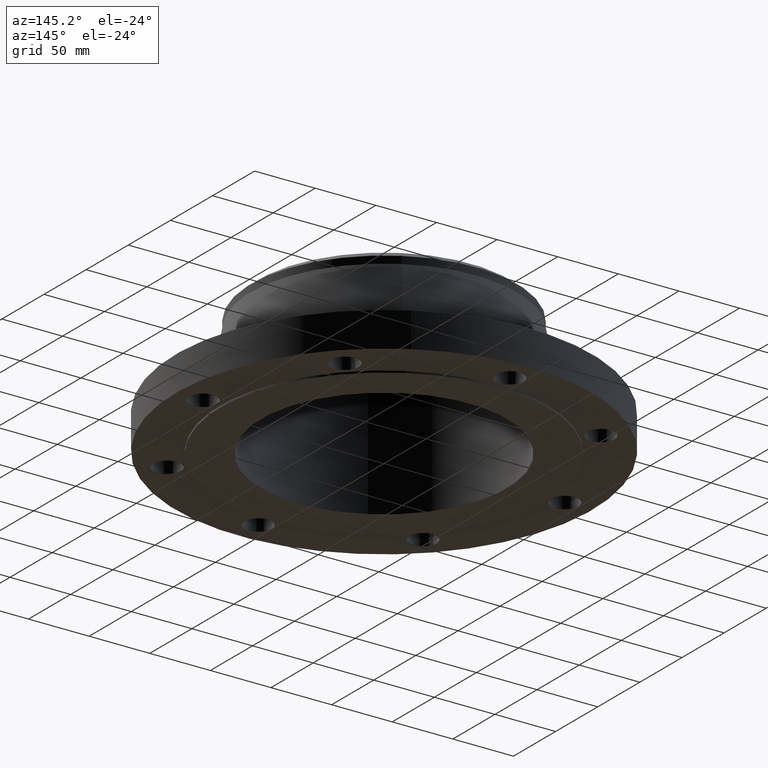
[diagram: clean part render]
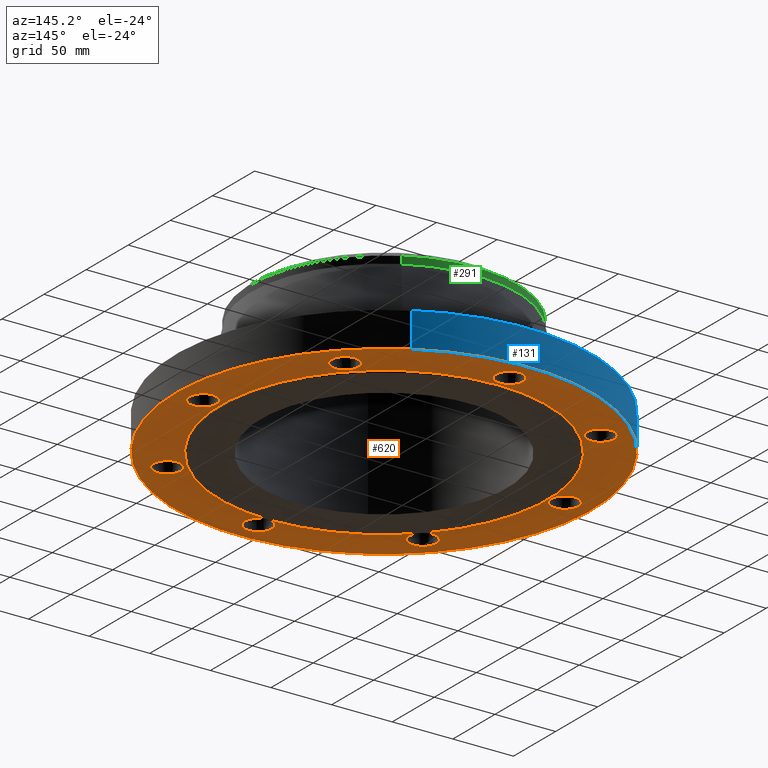
[diagram: same view with three faces highlighted in distinct colors, each labeled with its STEP entity id]
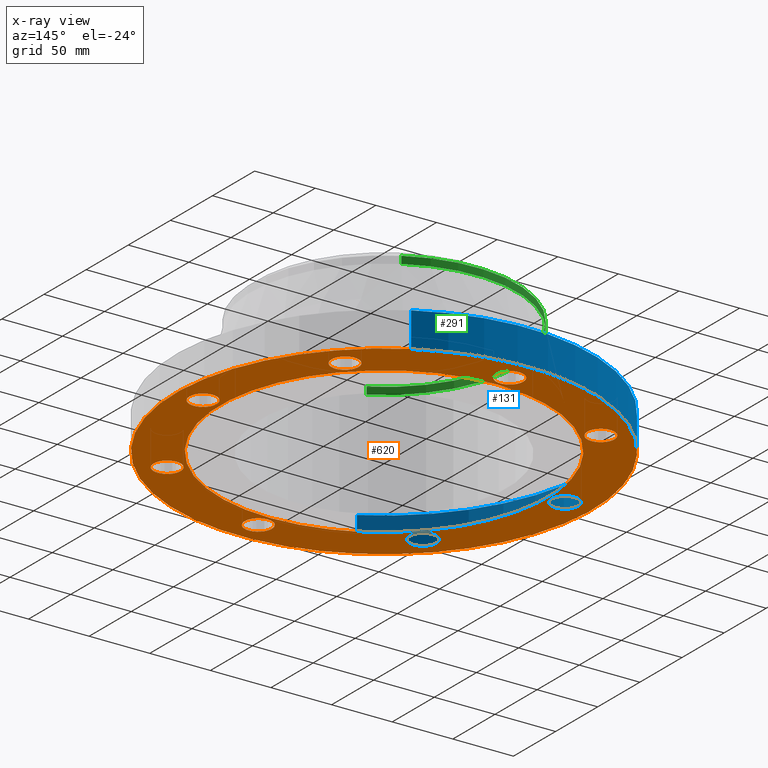
[diagram: x-ray of the same camera — body ghosted, the three highlighted faces saturated]
A machine part, auxiliary view with three faces highlighted in distinct colors.
The next image is the same camera in x-ray (body ghosted, the three faces saturated) — at least one of them is partly hidden behind the body in this view.
Their STEP definitions:

[orange] entity #620 — the highlighted planar face has unit normal (0, 0, -1).
#51=AXIS2_PLACEMENT_3D('Circle Axis2P3D',#49,#50,$) ;
#77=AXIS2_PLACEMENT_3D('Circle Axis2P3D',#75,#76,$) ;
#99=AXIS2_PLACEMENT_3D('Circle Axis2P3D',#97,#98,$) ;
#134=AXIS2_PLACEMENT_3D('Circle Axis2P3D',#132,#133,$) ;
#448=AXIS2_PLACEMENT_3D('Circle Axis2P3D',#446,#447,$) ;
#467=AXIS2_PLACEMENT_3D('Circle Axis2P3D',#465,#466,$) ;
#480=AXIS2_PLACEMENT_3D('Plane Axis2P3D',#477,#478,#479) ;
#496=AXIS2_PLACEMENT_3D('Circle Axis2P3D',#494,#495,$) ;
#505=AXIS2_PLACEMENT_3D('Circle Axis2P3D',#503,#504,$) ;
#514=AXIS2_PLACEMENT_3D('Circle Axis2P3D',#512,#513,$) ;
#523=AXIS2_PLACEMENT_3D('Circle Axis2P3D',#521,#522,$) ;
#532=AXIS2_PLACEMENT_3D('Circle Axis2P3D',#530,#531,$) ;
#541=AXIS2_PLACEMENT_3D('Circle Axis2P3D',#539,#540,$) ;
#550=AXIS2_PLACEMENT_3D('Circle Axis2P3D',#548,#549,$) ;
#559=AXIS2_PLACEMENT_3D('Circle Axis2P3D',#557,#558,$) ;
#568=AXIS2_PLACEMENT_3D('Circle Axis2P3D',#566,#567,$) ;
#577=AXIS2_PLACEMENT_3D('Circle Axis2P3D',#575,#576,$) ;
#586=AXIS2_PLACEMENT_3D('Circle Axis2P3D',#584,#585,$) ;
#595=AXIS2_PLACEMENT_3D('Circle Axis2P3D',#593,#594,$) ;
#604=AXIS2_PLACEMENT_3D('Circle Axis2P3D',#602,#603,$) ;
#613=AXIS2_PLACEMENT_3D('Circle Axis2P3D',#611,#612,$) ;
#44=CARTESIAN_POINT('Vertex',(5.48886367279,0.210947236987,0.)) ;
#49=CARTESIAN_POINT('Axis2P3D Location',(5.87500000002,0.,0.)) ;
#53=CARTESIAN_POINT('Vertex',(6.26113632726,-0.210947236987,0.)) ;
#75=CARTESIAN_POINT('Axis2P3D Location',(5.87500000002,0.,0.)) ;
#97=CARTESIAN_POINT('Axis2P3D Location',(0.,0.,2.79741234551E-016)) ;
#101=CARTESIAN_POINT('Vertex',(-3.23612238559,-5.92368229278,2.79741234551E-016)) ;
#103=CARTESIAN_POINT('Vertex',(3.23612238559,5.92368229278,2.79741234551E-016)) ;
#132=CARTESIAN_POINT('Axis2P3D Location',(0.,0.,2.79741234551E-016)) ;
#443=CARTESIAN_POINT('Vertex',(-2.54814673769,-4.66435131647,5.59482469102E-016)) ;
#446=CARTESIAN_POINT('Axis2P3D Location',(0.,0.,5.59482469102E-016)) ;
#450=CARTESIAN_POINT('Vertex',(2.54814673769,4.66435131647,5.59482469102E-016)) ;
#465=CARTESIAN_POINT('Axis2P3D Location',(0.,0.,5.59482469102E-016)) ;
#477=CARTESIAN_POINT('Axis2P3D Location',(0.,5.31500000002,0.)) ;
#494=CARTESIAN_POINT('Axis2P3D Location',(4.15425233949,-4.15425233949,0.)) ;
#498=CARTESIAN_POINT('Vertex',(4.03037494578,-3.73205050229,0.)) ;
#500=CARTESIAN_POINT('Vertex',(4.27812973319,-4.57645417668,0.)) ;
#503=CARTESIAN_POINT('Axis2P3D Location',(4.15425233949,-4.15425233949,0.)) ;
#512=CARTESIAN_POINT('Axis2P3D Location',(-1.60851209867E-015,-5.87500000002,0.)) ;
#516=CARTESIAN_POINT('Vertex',(0.210947236987,-5.48886367279,0.)) ;
#518=CARTESIAN_POINT('Vertex',(-0.210947236987,-6.26113632726,0.)) ;
#521=CARTESIAN_POINT('Axis2P3D Location',(2.44773580232E-016,-5.87500000002,0.)) ;
#530=CARTESIAN_POINT('Axis2P3D Location',(-4.15425233949,-4.15425233949,0.)) ;
#534=CARTESIAN_POINT('Vertex',(-3.73205050229,-4.03037494578,0.)) ;
#536=CARTESIAN_POINT('Vertex',(-4.57645417668,-4.27812973319,0.)) ;
#539=CARTESIAN_POINT('Axis2P3D Location',(-4.15425233949,-4.15425233949,0.)) ;
#548=CARTESIAN_POINT('Axis2P3D Location',(-5.87500000002,-1.1189649382E-015,0.)) ;
#552=CARTESIAN_POINT('Vertex',(-5.48886367279,-0.210947236987,0.)) ;
#554=CARTESIAN_POINT('Vertex',(-6.26113632726,0.210947236987,0.)) ;
#557=CARTESIAN_POINT('Axis2P3D Location',(-5.87500000002,-1.1189649382E-015,0.)) ;
#566=CARTESIAN_POINT('Axis2P3D Location',(-4.15425233949,4.15425233949,0.)) ;
#570=CARTESIAN_POINT('Vertex',(-4.03037494578,3.73205050229,0.)) ;
#572=CARTESIAN_POINT('Vertex',(-4.27812973319,4.57645417668,0.)) ;
#575=CARTESIAN_POINT('Axis2P3D Location',(-4.15425233949,4.15425233949,0.)) ;
#584=CARTESIAN_POINT('Axis2P3D Location',(-1.53857679003E-015,5.87500000002,0.)) ;
#588=CARTESIAN_POINT('Vertex',(-0.210947236987,5.48886367279,0.)) ;
#590=CARTESIAN_POINT('Vertex',(0.210947236987,6.26113632726,0.)) ;
#593=CARTESIAN_POINT('Axis2P3D Location',(-6.2941777774E-016,5.87500000002,0.)) ;
#602=CARTESIAN_POINT('Axis2P3D Location',(4.15425233949,4.15425233949,0.)) ;
#606=CARTESIAN_POINT('Vertex',(3.73205050229,4.03037494578,0.)) ;
#608=CARTESIAN_POINT('Vertex',(4.57645417668,4.27812973319,0.)) ;
#611=CARTESIAN_POINT('Axis2P3D Location',(4.15425233949,4.15425233949,0.)) ;
#50=DIRECTION('Axis2P3D Direction',(0.,-0.,-0.0393700787402)) ;
#76=DIRECTION('Axis2P3D Direction',(0.,-0.,-0.0393700787402)) ;
#98=DIRECTION('Axis2P3D Direction',(0.,0.,-0.0393700787402)) ;
#133=DIRECTION('Axis2P3D Direction',(0.,0.,-0.0393700787402)) ;
#447=DIRECTION('Axis2P3D Direction',(0.,0.,-0.0393700787402)) ;
#466=DIRECTION('Axis2P3D Direction',(0.,0.,-0.0393700787402)) ;
#478=DIRECTION('Axis2P3D Direction',(0.,0.,-0.0393700787402)) ;
#479=DIRECTION('Axis2P3D XDirection',(0.0393700787402,0.,0.)) ;
#495=DIRECTION('Axis2P3D Direction',(0.,0.,-0.0393700787402)) ;
#504=DIRECTION('Axis2P3D Direction',(0.,0.,-0.0393700787402)) ;
#513=DIRECTION('Axis2P3D Direction',(0.,0.,-0.0393700787402)) ;
#522=DIRECTION('Axis2P3D Direction',(0.,0.,-0.0393700787402)) ;
#531=DIRECTION('Axis2P3D Direction',(0.,0.,-0.0393700787402)) ;
#540=DIRECTION('Axis2P3D Direction',(0.,0.,-0.0393700787402)) ;
#549=DIRECTION('Axis2P3D Direction',(0.,0.,-0.0393700787402)) ;
#558=DIRECTION('Axis2P3D Direction',(0.,0.,-0.0393700787402)) ;
#567=DIRECTION('Axis2P3D Direction',(0.,0.,-0.0393700787402)) ;
#576=DIRECTION('Axis2P3D Direction',(0.,0.,-0.0393700787402)) ;
#585=DIRECTION('Axis2P3D Direction',(0.,0.,-0.0393700787402)) ;
#594=DIRECTION('Axis2P3D Direction',(0.,0.,-0.0393700787402)) ;
#603=DIRECTION('Axis2P3D Direction',(0.,0.,-0.0393700787402)) ;
#612=DIRECTION('Axis2P3D Direction',(0.,0.,-0.0393700787402)) ;
#483=ORIENTED_EDGE('',*,*,#105,.T.) ;
#484=ORIENTED_EDGE('',*,*,#136,.T.) ;
#487=ORIENTED_EDGE('',*,*,#79,.F.) ;
#488=ORIENTED_EDGE('',*,*,#55,.F.) ;
#491=ORIENTED_EDGE('',*,*,#469,.F.) ;
#492=ORIENTED_EDGE('',*,*,#452,.F.) ;
#509=ORIENTED_EDGE('',*,*,#502,.F.) ;
#510=ORIENTED_EDGE('',*,*,#507,.F.) ;
#527=ORIENTED_EDGE('',*,*,#520,.F.) ;
#528=ORIENTED_EDGE('',*,*,#525,.F.) ;
#545=ORIENTED_EDGE('',*,*,#538,.F.) ;
#546=ORIENTED_EDGE('',*,*,#543,.F.) ;
#563=ORIENTED_EDGE('',*,*,#556,.F.) ;
#564=ORIENTED_EDGE('',*,*,#561,.F.) ;
#581=ORIENTED_EDGE('',*,*,#574,.F.) ;
#582=ORIENTED_EDGE('',*,*,#579,.F.) ;
#599=ORIENTED_EDGE('',*,*,#592,.F.) ;
#600=ORIENTED_EDGE('',*,*,#597,.F.) ;
#617=ORIENTED_EDGE('',*,*,#610,.F.) ;
#618=ORIENTED_EDGE('',*,*,#615,.F.) ;
#489=FACE_BOUND('',#486,.T.) ;
#493=FACE_BOUND('',#490,.T.) ;
#511=FACE_BOUND('',#508,.T.) ;
#529=FACE_BOUND('',#526,.T.) ;
#547=FACE_BOUND('',#544,.T.) ;
#565=FACE_BOUND('',#562,.T.) ;
#583=FACE_BOUND('',#580,.T.) ;
#601=FACE_BOUND('',#598,.T.) ;
#619=FACE_BOUND('',#616,.T.) ;
#620=ADVANCED_FACE('PartBody',(#485,#489,#493,#511,#529,#547,#565,#583,#601,#619),#481,.T.) ;
#52=CIRCLE('generated circle',#51,0.440000000002) ;
#78=CIRCLE('generated circle',#77,0.440000000002) ;
#100=CIRCLE('generated circle',#99,6.75000000003) ;
#135=CIRCLE('generated circle',#134,6.75000000003) ;
#449=CIRCLE('generated circle',#448,5.31500000002) ;
#468=CIRCLE('generated circle',#467,5.31500000002) ;
#497=CIRCLE('generated circle',#496,0.440000000002) ;
#506=CIRCLE('generated circle',#505,0.440000000002) ;
#515=CIRCLE('generated circle',#514,0.440000000002) ;
#524=CIRCLE('generated circle',#523,0.440000000002) ;
#533=CIRCLE('generated circle',#532,0.440000000002) ;
#542=CIRCLE('generated circle',#541,0.440000000002) ;
#551=CIRCLE('generated circle',#550,0.440000000002) ;
#560=CIRCLE('generated circle',#559,0.440000000002) ;
#569=CIRCLE('generated circle',#568,0.440000000002) ;
#578=CIRCLE('generated circle',#577,0.440000000002) ;
#587=CIRCLE('generated circle',#586,0.440000000002) ;
#596=CIRCLE('generated circle',#595,0.440000000002) ;
#605=CIRCLE('generated circle',#604,0.440000000002) ;
#614=CIRCLE('generated circle',#613,0.440000000002) ;
#55=EDGE_CURVE('',#45,#54,#52,.T.) ;
#79=EDGE_CURVE('',#54,#45,#78,.T.) ;
#105=EDGE_CURVE('',#102,#104,#100,.T.) ;
#136=EDGE_CURVE('',#104,#102,#135,.T.) ;
#452=EDGE_CURVE('',#444,#451,#449,.T.) ;
#469=EDGE_CURVE('',#451,#444,#468,.T.) ;
#502=EDGE_CURVE('',#499,#501,#497,.T.) ;
#507=EDGE_CURVE('',#501,#499,#506,.T.) ;
#520=EDGE_CURVE('',#517,#519,#515,.T.) ;
#525=EDGE_CURVE('',#519,#517,#524,.T.) ;
#538=EDGE_CURVE('',#535,#537,#533,.T.) ;
#543=EDGE_CURVE('',#537,#535,#542,.T.) ;
#556=EDGE_CURVE('',#553,#555,#551,.T.) ;
#561=EDGE_CURVE('',#555,#553,#560,.T.) ;
#574=EDGE_CURVE('',#571,#573,#569,.T.) ;
#579=EDGE_CURVE('',#573,#571,#578,.T.) ;
#592=EDGE_CURVE('',#589,#591,#587,.T.) ;
#597=EDGE_CURVE('',#591,#589,#596,.T.) ;
#610=EDGE_CURVE('',#607,#609,#605,.T.) ;
#615=EDGE_CURVE('',#609,#607,#614,.T.) ;
#482=EDGE_LOOP('',(#483,#484)) ;
#486=EDGE_LOOP('',(#487,#488)) ;
#490=EDGE_LOOP('',(#491,#492)) ;
#508=EDGE_LOOP('',(#509,#510)) ;
#526=EDGE_LOOP('',(#527,#528)) ;
#544=EDGE_LOOP('',(#545,#546)) ;
#562=EDGE_LOOP('',(#563,#564)) ;
#580=EDGE_LOOP('',(#581,#582)) ;
#598=EDGE_LOOP('',(#599,#600)) ;
#616=EDGE_LOOP('',(#617,#618)) ;
#485=FACE_OUTER_BOUND('',#482,.T.) ;
#481=PLANE('',#480) ;
#45=VERTEX_POINT('',#44) ;
#54=VERTEX_POINT('',#53) ;
#102=VERTEX_POINT('',#101) ;
#104=VERTEX_POINT('',#103) ;
#444=VERTEX_POINT('',#443) ;
#451=VERTEX_POINT('',#450) ;
#499=VERTEX_POINT('',#498) ;
#501=VERTEX_POINT('',#500) ;
#517=VERTEX_POINT('',#516) ;
#519=VERTEX_POINT('',#518) ;
#535=VERTEX_POINT('',#534) ;
#537=VERTEX_POINT('',#536) ;
#553=VERTEX_POINT('',#552) ;
#555=VERTEX_POINT('',#554) ;
#571=VERTEX_POINT('',#570) ;
#573=VERTEX_POINT('',#572) ;
#589=VERTEX_POINT('',#588) ;
#591=VERTEX_POINT('',#590) ;
#607=VERTEX_POINT('',#606) ;
#609=VERTEX_POINT('',#608) ;

[blue] entity #131 — the highlighted cylindrical surface (partial cylindrical patch) has radius 171.45 mm, axis along (0, 0, -1).
#95=AXIS2_PLACEMENT_3D('Cylinder Axis2P3D',#92,#93,#94) ;
#99=AXIS2_PLACEMENT_3D('Circle Axis2P3D',#97,#98,$) ;
#115=AXIS2_PLACEMENT_3D('Circle Axis2P3D',#113,#114,$) ;
#92=CARTESIAN_POINT('Axis2P3D Location',(0.,0.,2.01850000001)) ;
#97=CARTESIAN_POINT('Axis2P3D Location',(0.,0.,2.79741234551E-016)) ;
#101=CARTESIAN_POINT('Vertex',(-3.23612238559,-5.92368229278,2.79741234551E-016)) ;
#103=CARTESIAN_POINT('Vertex',(3.23612238559,5.92368229278,2.79741234551E-016)) ;
#106=CARTESIAN_POINT('Line Origine',(-3.23612238559,-5.92368229278,0.565000000002)) ;
#110=CARTESIAN_POINT('Vertex',(-3.23612238559,-5.92368229278,1.13)) ;
#113=CARTESIAN_POINT('Axis2P3D Location',(0.,0.,1.13)) ;
#117=CARTESIAN_POINT('Vertex',(3.23612238559,5.92368229278,1.13)) ;
#120=CARTESIAN_POINT('Line Origine',(3.23612238559,5.92368229278,0.565000000002)) ;
#93=DIRECTION('Axis2P3D Direction',(0.,0.,-0.0393700787402)) ;
#94=DIRECTION('Axis2P3D XDirection',(0.0188750212049,0.0345504945626,0.)) ;
#98=DIRECTION('Axis2P3D Direction',(0.,0.,-0.0393700787402)) ;
#107=DIRECTION('Vector Direction',(0.,0.,-0.0393700787402)) ;
#114=DIRECTION('Axis2P3D Direction',(0.,0.,-0.0393700787402)) ;
#121=DIRECTION('Vector Direction',(0.,0.,-0.0393700787402)) ;
#108=VECTOR('Line Direction',#107,0.0393700787402) ;
#122=VECTOR('Line Direction',#121,0.0393700787402) ;
#126=ORIENTED_EDGE('',*,*,#105,.F.) ;
#127=ORIENTED_EDGE('',*,*,#112,.T.) ;
#128=ORIENTED_EDGE('',*,*,#119,.T.) ;
#129=ORIENTED_EDGE('',*,*,#124,.F.) ;
#131=ADVANCED_FACE('PartBody',(#130),#96,.T.) ;
#100=CIRCLE('generated circle',#99,6.75000000003) ;
#116=CIRCLE('generated circle',#115,6.75000000003) ;
#96=CYLINDRICAL_SURFACE('generated cylinder',#95,6.75000000003) ;
#105=EDGE_CURVE('',#102,#104,#100,.T.) ;
#112=EDGE_CURVE('',#102,#111,#109,.F.) ;
#119=EDGE_CURVE('',#111,#118,#116,.T.) ;
#124=EDGE_CURVE('',#104,#118,#123,.F.) ;
#125=EDGE_LOOP('',(#126,#127,#128,#129)) ;
#130=FACE_OUTER_BOUND('',#125,.T.) ;
#109=LINE('Line',#106,#108) ;
#123=LINE('Line',#120,#122) ;
#102=VERTEX_POINT('',#101) ;
#104=VERTEX_POINT('',#103) ;
#111=VERTEX_POINT('',#110) ;
#118=VERTEX_POINT('',#117) ;

[green] entity #291 — the highlighted cylindrical surface (partial cylindrical patch) has radius 109.601 mm, axis along (0, 0, -1).
#239=AXIS2_PLACEMENT_3D('Circle Axis2P3D',#237,#238,$) ;
#252=AXIS2_PLACEMENT_3D('Cylinder Axis2P3D',#249,#250,#251) ;
#282=AXIS2_PLACEMENT_3D('Circle Axis2P3D',#280,#281,$) ;
#215=CARTESIAN_POINT('Vertex',(2.06872119909,3.78676875457,3.56273985672)) ;
#222=CARTESIAN_POINT('Vertex',(-2.06872119909,-3.78676875457,3.56273985672)) ;
#237=CARTESIAN_POINT('Axis2P3D Location',(0.,0.,3.56273985672)) ;
#249=CARTESIAN_POINT('Axis2P3D Location',(0.,0.,2.01850000001)) ;
#254=CARTESIAN_POINT('Line Origine',(-2.06872119909,-3.78676875457,3.68085009294)) ;
#258=CARTESIAN_POINT('Vertex',(-2.06872119909,-3.78676875457,3.79896032916)) ;
#261=CARTESIAN_POINT('Line Origine',(2.06872119909,3.78676875457,3.68085009294)) ;
#265=CARTESIAN_POINT('Vertex',(2.06872119909,3.78676875457,3.79896032916)) ;
#280=CARTESIAN_POINT('Axis2P3D Location',(0.,0.,3.79896032916)) ;
#238=DIRECTION('Axis2P3D Direction',(0.,0.,-0.0393700787402)) ;
#250=DIRECTION('Axis2P3D Direction',(0.,0.,-0.0393700787402)) ;
#251=DIRECTION('Axis2P3D XDirection',(-0.0188750212049,-0.0345504945626,0.)) ;
#255=DIRECTION('Vector Direction',(0.,0.,-0.0393700787402)) ;
#262=DIRECTION('Vector Direction',(0.,0.,-0.0393700787402)) ;
#281=DIRECTION('Axis2P3D Direction',(0.,0.,-0.0393700787402)) ;
#256=VECTOR('Line Direction',#255,0.0393700787402) ;
#263=VECTOR('Line Direction',#262,0.0393700787402) ;
#286=ORIENTED_EDGE('',*,*,#267,.F.) ;
#287=ORIENTED_EDGE('',*,*,#241,.F.) ;
#288=ORIENTED_EDGE('',*,*,#260,.T.) ;
#289=ORIENTED_EDGE('',*,*,#284,.T.) ;
#291=ADVANCED_FACE('PartBody',(#290),#253,.T.) ;
#240=CIRCLE('generated circle',#239,4.31500000002) ;
#283=CIRCLE('generated circle',#282,4.31500000002) ;
#253=CYLINDRICAL_SURFACE('generated cylinder',#252,4.31500000002) ;
#241=EDGE_CURVE('',#223,#216,#240,.T.) ;
#260=EDGE_CURVE('',#223,#259,#257,.F.) ;
#267=EDGE_CURVE('',#216,#266,#264,.F.) ;
#284=EDGE_CURVE('',#259,#266,#283,.T.) ;
#285=EDGE_LOOP('',(#286,#287,#288,#289)) ;
#290=FACE_OUTER_BOUND('',#285,.T.) ;
#257=LINE('Line',#254,#256) ;
#264=LINE('Line',#261,#263) ;
#216=VERTEX_POINT('',#215) ;
#223=VERTEX_POINT('',#222) ;
#259=VERTEX_POINT('',#258) ;
#266=VERTEX_POINT('',#265) ;